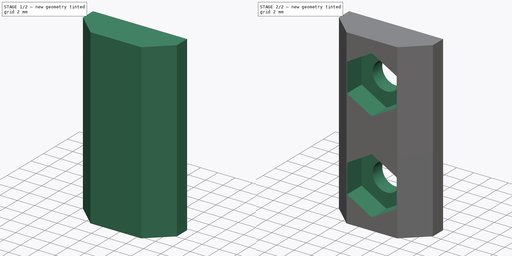
[diagram: build sequence overview — one tinted view per stage of 2, left to right]
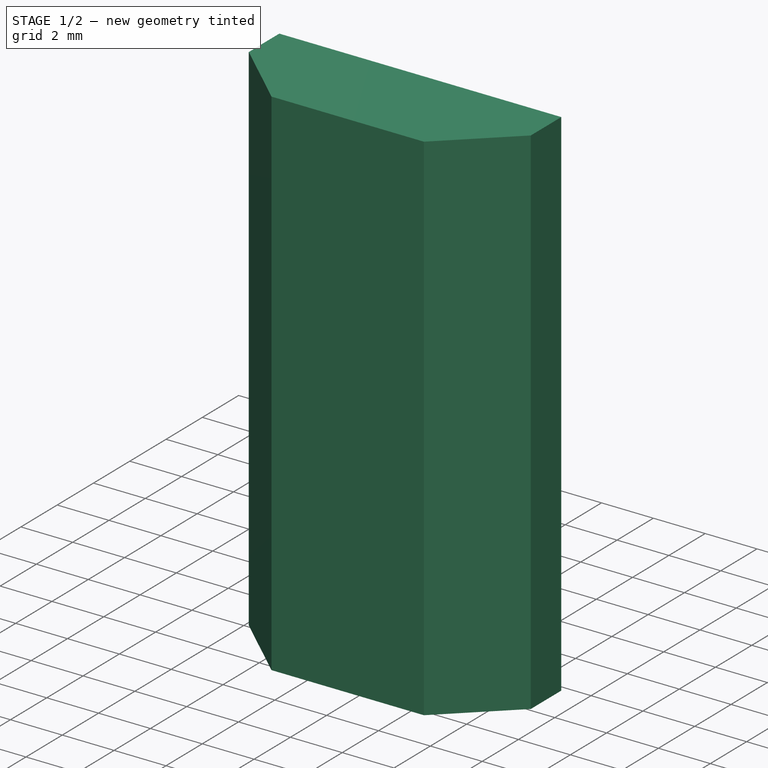
[diagram: stage 1 of 2 — iso view after this stage's code; geometry added in this stage tinted green]
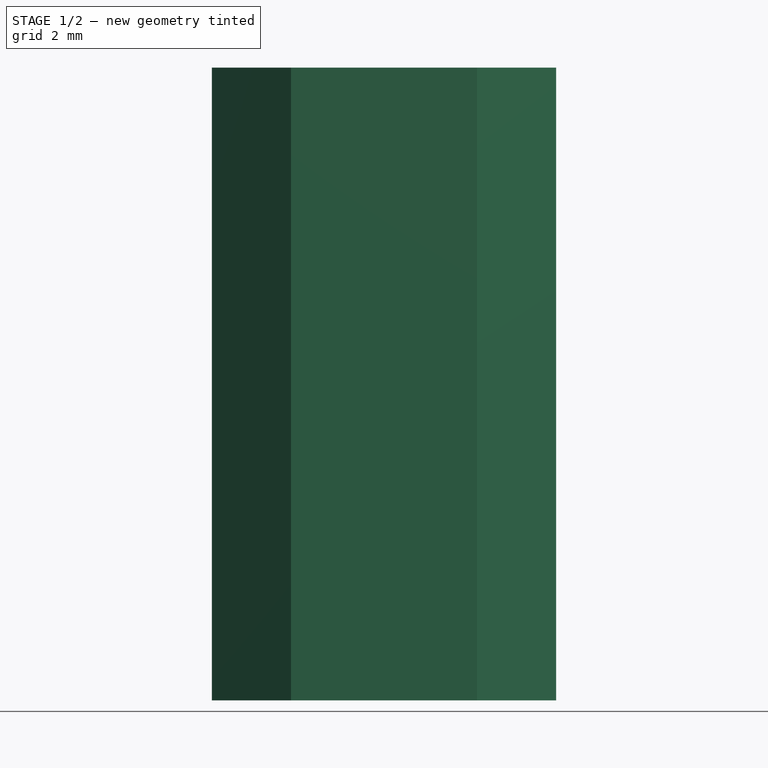
[diagram: stage 1 of 2 — front view after this stage's code; geometry added in this stage tinted green]
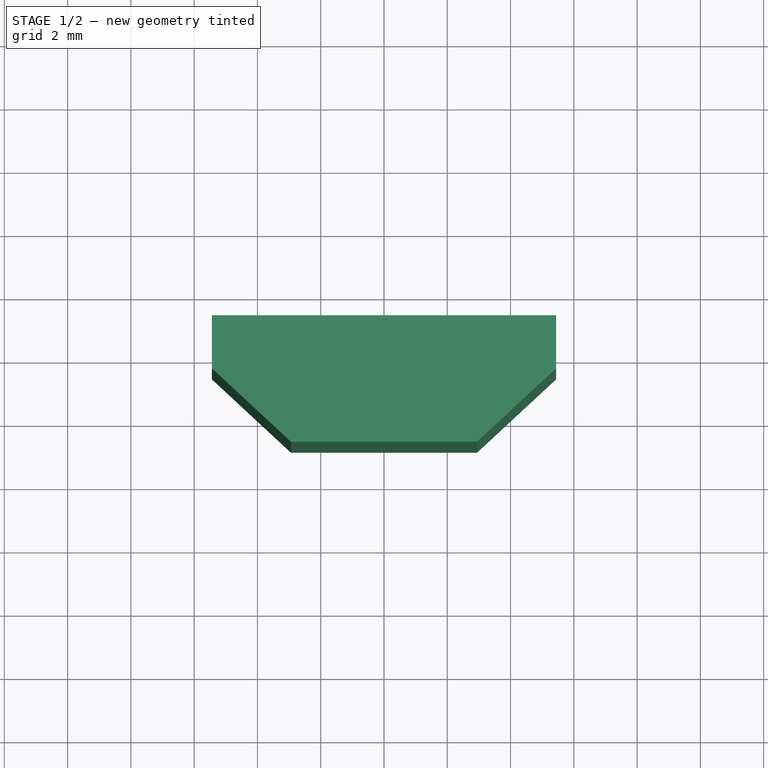
[diagram: stage 1 of 2 — top view after this stage's code; geometry added in this stage tinted green]
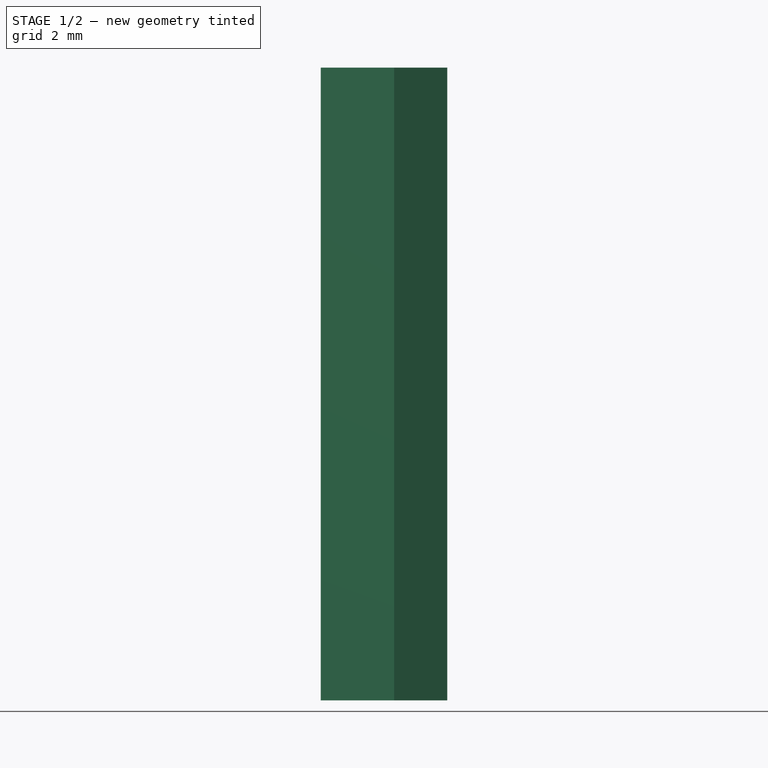
[diagram: stage 1 of 2 — right view after this stage's code; geometry added in this stage tinted green]
FCSTD DOCUMENT  (FreeCAD 0.19R24366 (Git))
Label: v-slot-2020-mancal-motor-trem
License: All rights reserved
LicenseURL: http://en.wikipedia.org/wiki/All_rights_reserved
objects: Sketcher::SketchObject×6, PartDesign::Pocket×3, PartDesign::Pad×1, PartDesign::Body×1
note: 15 computed .brp shape members not serialized (recipe doc carries the construction recipe); baked Part::Feature solids carry a one-line shape summary decoded from their .brp

FEATURE [Sketcher::SketchObject] Sketch
  FullyConstrained = true
  MapMode = 5
  Support = -> [XY_Plane]
  sketch-geometry (16):
    g0: LineSegment StartX=2.94 StartY=-2.84 StartZ=0 EndX=-2.94 EndY=-2.84 EndZ=0
    g1: LineSegment StartX=-2.94 StartY=-2.84 StartZ=0 EndX=-5.44 EndY=-0.52 EndZ=0
    g2: LineSegment StartX=-5.44 StartY=-0.52 StartZ=0 EndX=-5.44 EndY=1.16 EndZ=0
    g3: LineSegment StartX=-5.44 StartY=1.16 StartZ=0 EndX=-2.94 EndY=1.16 EndZ=0
    g4: LineSegment StartX=-2.94 StartY=1.16 StartZ=0 EndX=-2.94 EndY=2.84 EndZ=0
    g5: LineSegment StartX=-2.94 StartY=2.84 StartZ=0 EndX=2.94 EndY=2.84 EndZ=0
    g6: LineSegment StartX=2.94 StartY=2.84 StartZ=0 EndX=2.94 EndY=1.16 EndZ=0
    g7: LineSegment StartX=2.94 StartY=1.16 StartZ=0 EndX=5.44 EndY=1.16 EndZ=0
    g8: LineSegment StartX=5.44 StartY=1.16 StartZ=0 EndX=5.44 EndY=-0.52 EndZ=0
    g9: LineSegment StartX=5.44 StartY=-0.52 StartZ=0 EndX=2.94 EndY=-2.84 EndZ=0
    g10: LineSegment StartX=-2.94 StartY=-2.84 StartZ=0 EndX=0 EndY=-2.84 EndZ=0
    g11: LineSegment StartX=2.94 StartY=-2.84 StartZ=0 EndX=0 EndY=-2.84 EndZ=0
    g12: LineSegment StartX=-2.94 StartY=2.84 StartZ=0 EndX=0 EndY=2.84 EndZ=0
    g13: LineSegment StartX=0 StartY=2.84 StartZ=0 EndX=2.94 EndY=2.84 EndZ=0
    g14: LineSegment StartX=0 StartY=2.84 StartZ=0 EndX=0 EndY=0 EndZ=0
    g15: LineSegment StartX=0 StartY=0 StartZ=0 EndX=0 EndY=-2.84 EndZ=0
  constraints (45):
    c: Horizontal(g0)
    c: Coincident(g0,g1)
    c: Coincident(g1,g2)
    c: Vertical(g2)
    c: Coincident(g2,g3)
    c: Horizontal(g3)
    c: Coincident(g3,g4)
    c: Vertical(g4)
    c: Coincident(g4,g5)
    c: Horizontal(g5)
    c: Coincident(g5,g6)
    c: Coincident(g6,g7)
    c: Horizontal(g7)
    c: Coincident(g7,g8)
    c: Coincident(g8,g9)
    c: Coincident(g9,g0)
    c: Equal(g3,g7)
    c: Vertical(g6)
    c: Equal(g4,g6)
    c: Vertical(g8)
    c: Equal(g8,g2)
    c: Equal(g1,g9)
    c: Coincident(g13,g12)
    c: Coincident(g12,g4)
    c: Coincident(g13,g5)
    c: Coincident(g0,g10)
    c: Coincident(g11,g0)
    c: Coincident(g11,g10)
    c: Equal(g11,g10)
    c: Equal(g12,g13)
    c: Vertical(g12,g-1)
    c: PointOnObject(g12,g5)
    c: PointOnObject(g10,g0)
    c: DistanceX(g5,g5) = 5.88
    c: DistanceY(g4,g4) = 1.68
    c: DistanceY(g0,g5) = 5.68
    c: DistanceX(g1,g8) = 10.88
    c: Equal(g2,g4)
    c: Coincident(g15,g10)
    c: Coincident(g15,g-1)
    c: Coincident(g14,g-1)
    c: PointOnObject(g14,g5)
    c: PointOnObject(g14,g-2)
    c: Equal(g14,g15)
    c: Equal(g0,g5)
FEATURE [PartDesign::Pad] Pad
  Direction = (1,1,1)
  Length = 20
  Length2 = 100
  Profile = -> Sketch
  Type = 0
FEATURE [Sketcher::SketchObject] Sketch001
  ExternalGeometry = -> [Pad]
  FullyConstrained = true
  MapMode = 5
  Placement = pos=(0,0,0) rot=(1,0,0;3.14159rad)
  Support = -> [Pad]
  sketch-geometry (4):
    g0: LineSegment StartX=-2.94 StartY=-2.84 StartZ=0 EndX=2.94 EndY=-2.84 EndZ=0
    g1: LineSegment StartX=2.94 StartY=-2.84 StartZ=0 EndX=2.94 EndY=-1.16 EndZ=0
    g2: LineSegment StartX=2.94 StartY=-1.16 StartZ=0 EndX=-2.94 EndY=-1.16 EndZ=0
    g3: LineSegment StartX=-2.94 StartY=-1.16 StartZ=0 EndX=-2.94 EndY=-2.84 EndZ=0
  constraints (10):
    c: Coincident(g0,g1)
    c: Coincident(g1,g2)
    c: Coincident(g2,g3)
    c: Coincident(g3,g0)
    c: Horizontal(g0)
    c: Horizontal(g2)
    c: Vertical(g1)
    c: Vertical(g3)
    c: Coincident(g0,g-4)
    c: Coincident(g1,g-5)
FEATURE [PartDesign::Pocket] Pocket
  BaseFeature = -> Pad
  Length = 0
  Length2 = 100
  Profile = -> Sketch001
  Type = 3
  UpToFace = -> Pad [Face12]
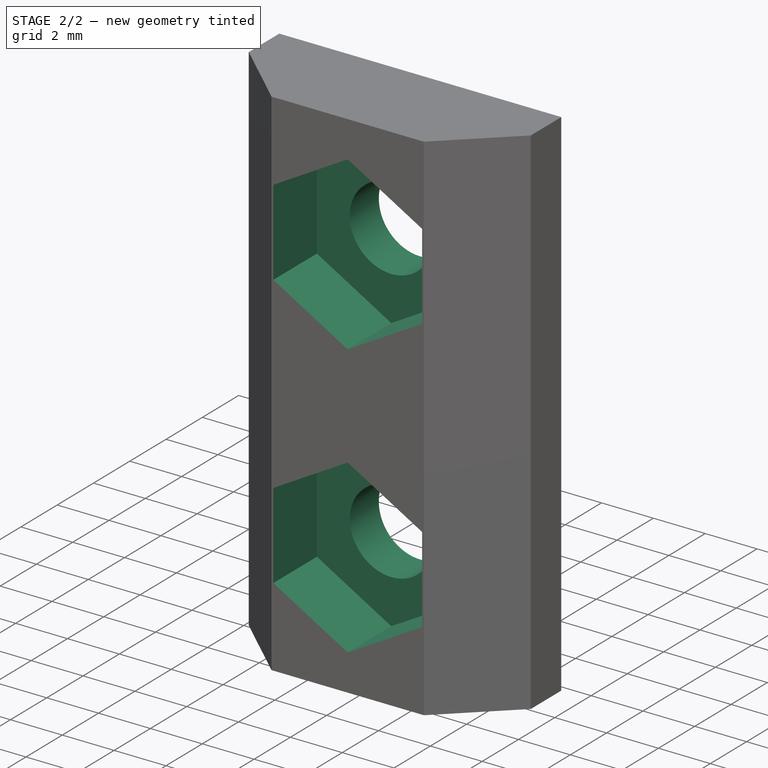
[diagram: stage 2 of 2 — iso view after this stage's code; geometry added in this stage tinted green]
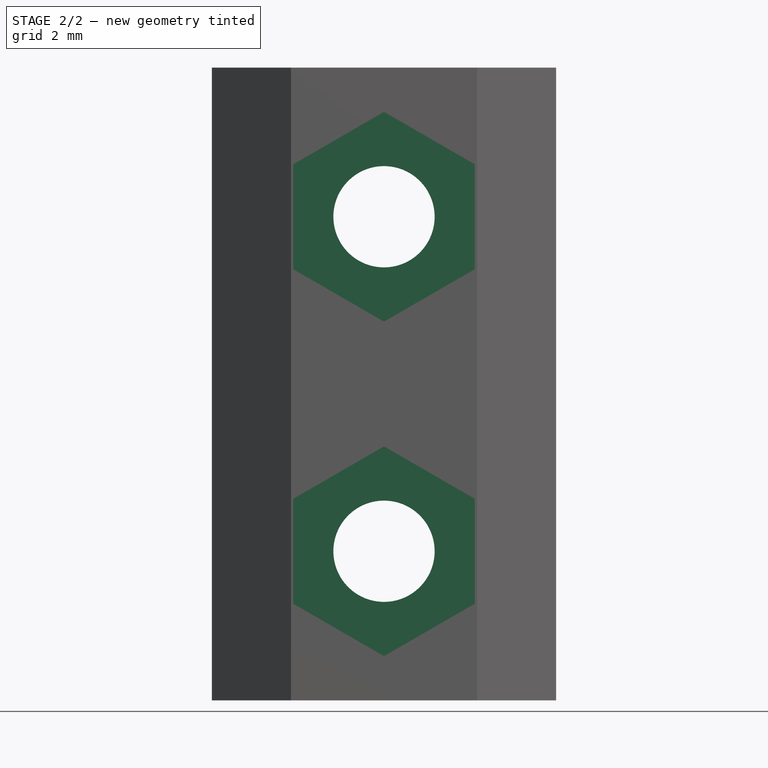
[diagram: stage 2 of 2 — front view after this stage's code; geometry added in this stage tinted green]
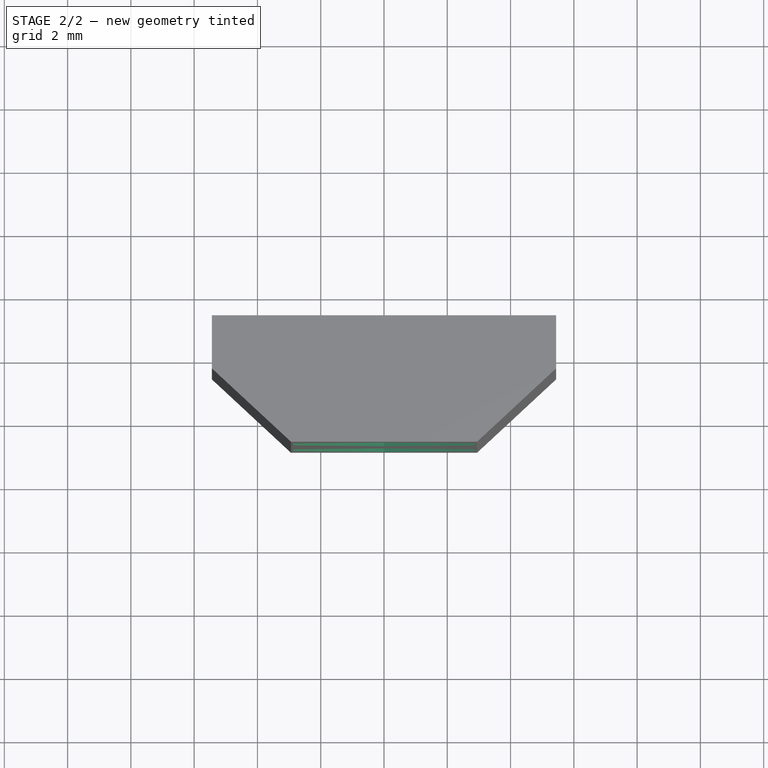
[diagram: stage 2 of 2 — top view after this stage's code; geometry added in this stage tinted green]
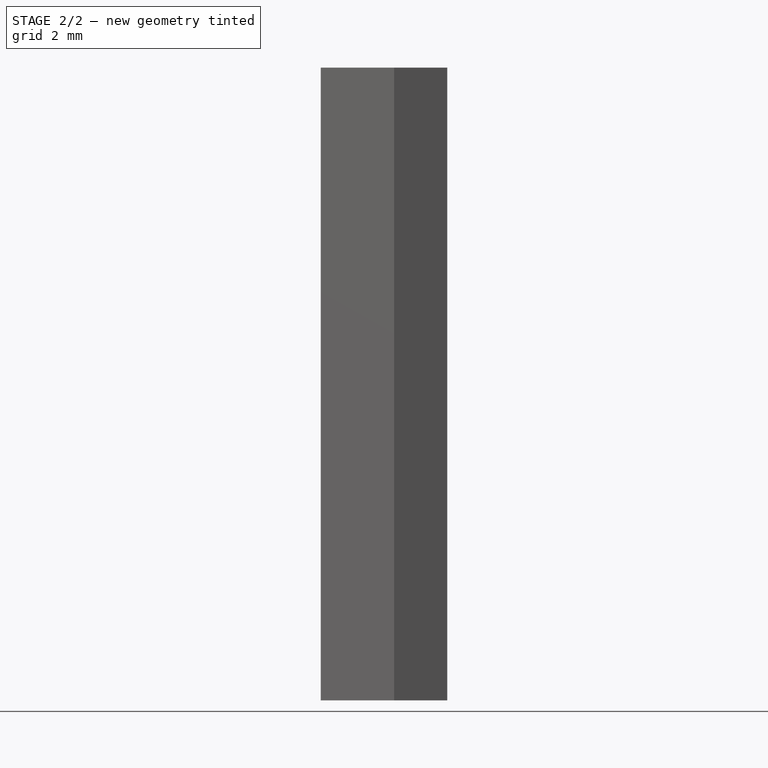
[diagram: stage 2 of 2 — right view after this stage's code; geometry added in this stage tinted green]
FEATURE [Sketcher::SketchObject] Sketch002
  ExternalGeometry = -> [Pocket]
  FullyConstrained = true
  MapMode = 5
  Placement = pos=(0,-2.84,0) rot=(1,0,0;1.5708rad)
  Support = -> [Pocket]
  sketch-geometry (17):
    g0: LineSegment StartX=0 StartY=0 StartZ=0 EndX=0 EndY=4.71399 EndZ=0
    g1: LineSegment StartX=0 StartY=20 StartZ=0 EndX=0 EndY=15.286 EndZ=0
    g2: LineSegment StartX=0 StartY=15.286 StartZ=0 EndX=0 EndY=4.71399 EndZ=0
    g3: LineSegment StartX=4e-16 StartY=18.6 StartZ=0 EndX=-2.87 EndY=16.943 EndZ=0
    g4: LineSegment StartX=-2.87 StartY=16.943 StartZ=0 EndX=-2.87 EndY=13.629 EndZ=0
    g5: LineSegment StartX=-2.87 StartY=13.629 StartZ=0 EndX=0 EndY=11.972 EndZ=0
    g6: LineSegment StartX=0 StartY=11.972 StartZ=0 EndX=2.87 EndY=13.629 EndZ=0
    g7: LineSegment StartX=2.87 StartY=13.629 StartZ=0 EndX=2.87 EndY=16.943 EndZ=0
    g8: LineSegment StartX=2.87 StartY=16.943 StartZ=0 EndX=4e-16 EndY=18.6 EndZ=0
    g9: Circle CenterX=0 CenterY=15.286 CenterZ=0 NormalX=0 NormalY=0 NormalZ=1 AngleXU=0 Radius=3.31399
    g10: LineSegment StartX=2.87 StartY=6.37099 StartZ=0 EndX=-6.7e-15 EndY=8.02798 EndZ=0
    g11: LineSegment StartX=-6.7e-15 StartY=8.02798 StartZ=0 EndX=-2.87 EndY=6.37099 EndZ=0
    g12: LineSegment StartX=-2.87 StartY=6.37099 StartZ=0 EndX=-2.87 EndY=3.057 EndZ=0
    g13: LineSegment StartX=-2.87 StartY=3.057 StartZ=0 EndX=-7.1e-15 EndY=1.4 EndZ=0
    g14: LineSegment StartX=-7.1e-15 StartY=1.4 StartZ=0 EndX=2.87 EndY=3.057 EndZ=0
    g15: LineSegment StartX=2.87 StartY=3.057 StartZ=0 EndX=2.87 EndY=6.37099 EndZ=0
    g16: Circle CenterX=0 CenterY=4.71399 CenterZ=0 NormalX=0 NormalY=0 NormalZ=1 AngleXU=0 Radius=3.31399
  constraints (41):
    c: Coincident(g2,g0)
    c: Coincident(g1,g2)
    c: Coincident(g0,g-1)
    c: PointOnObject(g1,g-3)
    c: PointOnObject(g1,g-2)
    c: Vertical(g1)
    c: Vertical(g2)
    c: Equal(g0,g1)
    c: Coincident(g3,g4)
    c: Coincident(g4,g5)
    c: Coincident(g5,g6)
    c: Coincident(g6,g7)
    c: Coincident(g7,g8)
    c: Coincident(g8,g3)
    c: Equal(g3, g4-g8) x5
    c: PointOnObject(g3,g9)
    c: PointOnObject(g4,g9)
    c: PointOnObject(g5,g9)
    c: PointOnObject(g6,g9)
    c: PointOnObject(g7,g9)
    c: PointOnObject(g8,g9)
    c: Coincident(g9,g1)
    c: Coincident(g10,g11)
    c: Coincident(g11,g12)
    c: Coincident(g12,g13)
    c: Coincident(g13,g14)
    c: Coincident(g14,g15)
    c: Coincident(g15,g10)
    c: Equal(g10, g11-g15) x5
    c: PointOnObject(g10,g16)
    c: PointOnObject(g11,g16)
    c: PointOnObject(g12,g16)
    c: PointOnObject(g13,g16)
    c: PointOnObject(g14,g16)
    c: PointOnObject(g15,g16)
    c: Coincident(g16,g0)
    c: Equal(g9,g16)
    c: Vertical(g4)
    c: Vertical(g12)
    c: DistanceX(g3,g7) = 5.74
    c: DistanceY(g-1,g13) = 1.4
FEATURE [PartDesign::Pocket] Pocket001
  BaseFeature = -> Pocket
  Length = 2.4
  Length2 = 100
  Profile = -> Sketch002
  Type = 0
FEATURE [Sketcher::SketchObject] Sketch003
  ExternalGeometry = -> [Pocket001]
  FullyConstrained = true
  MapMode = 5
  Placement = pos=(0,-0.44,1e-16) rot=(1,0,0;1.5708rad)
  Support = -> [Pocket001]
  sketch-geometry (4):
    g0: Circle CenterX=0 CenterY=15.286 CenterZ=0 NormalX=0 NormalY=0 NormalZ=1 AngleXU=0 Radius=3.31399
    g1: Circle CenterX=0 CenterY=4.71399 CenterZ=0 NormalX=0 NormalY=0 NormalZ=1 AngleXU=0 Radius=3.31399
    g2: Circle CenterX=0 CenterY=15.286 CenterZ=0 NormalX=0 NormalY=0 NormalZ=1 AngleXU=0 Radius=1.6
    g3: Circle CenterX=0 CenterY=4.71399 CenterZ=0 NormalX=0 NormalY=0 NormalZ=1 AngleXU=0 Radius=1.6
  constraints (11):
    c: PointOnObject(g0,g-2)
    c: PointOnObject(g1,g-2)
    c: PointOnObject(g-6,g1)
    c: PointOnObject(g-5,g1)
    c: PointOnObject(g-4,g0)
    c: PointOnObject(g-3,g0)
    c: Coincident(g2,g0)
    c: Coincident(g3,g1)
    c: Equal(g2,g3)
    c: Radius(g2) = 1.6
    c: DistanceY(g3,g2) = 10.572
FEATURE [PartDesign::Pocket] Pocket002
  BaseFeature = -> Pocket001
  Length = 0
  Length2 = 100
  Profile = -> Sketch003
  Type = 3
  UpToFace = -> Pocket001 [Face20]
FEATURE [Sketcher::SketchObject] Sketch004
  ExternalGeometry = -> [Pocket002]
  FullyConstrained = true
  MapMode = 5
  Placement = pos=(0,0,20) rot=(0,0,1;0rad)
  Support = -> [Pocket002]
  constraints (4):
    c: DistanceY(g-7,g-7) = 1.68
    c: DistanceX(g-9,g-9) = 5.88
    c: DistanceX(g-4,g-7) = 10.88
    c: DistanceY(g-10,g-4) = 4
FEATURE [Sketcher::SketchObject] Sketch005
  ExternalGeometry = -> [Pocket002]
  FullyConstrained = true
  MapMode = 5
  Placement = pos=(0,-2.84,0) rot=(1,0,0;1.5708rad)
  Support = -> [Pocket002]
  constraints (4):
    c: DistanceX(g-3,g-4) = 5.74
    c: Radius(g-5) = 1.6
    c: DistanceY(g-6,g-5) = 10.572
    c: DistanceY(g-8,g-7) = 20
FEATURE [PartDesign::Body] Body
  Group = -> [Sketch,Pad,Sketch001,Pocket,Sketch002,Pocket001,Sketch003,Pocket002,Sketch004,Sketch005]
  Origin = -> Origin
  Tip = -> Pocket002
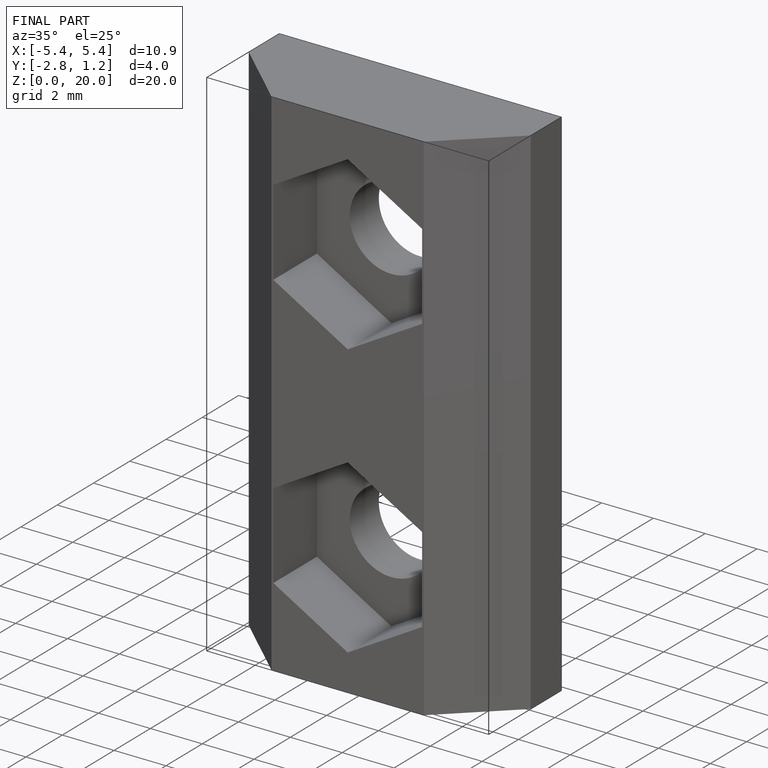
[diagram: finished part — iso view with bounding-box wireframe]
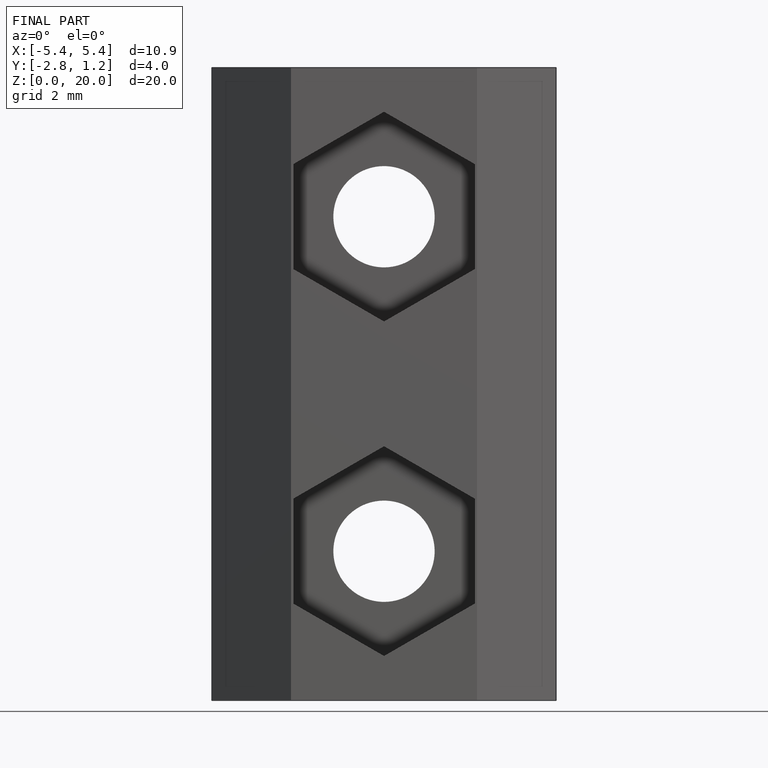
[diagram: finished part — front view with bounding-box wireframe]
